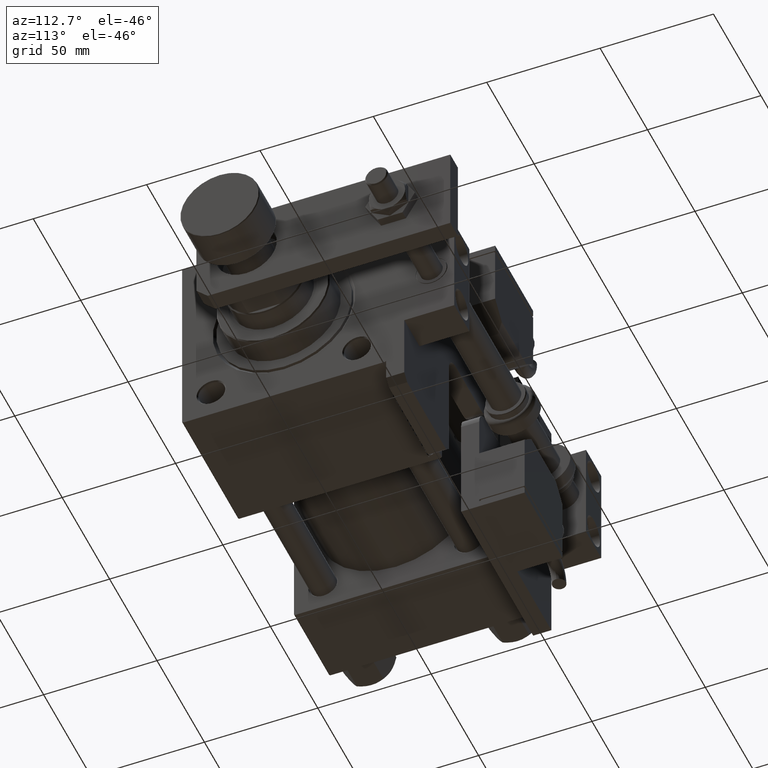
[diagram: clean part render]
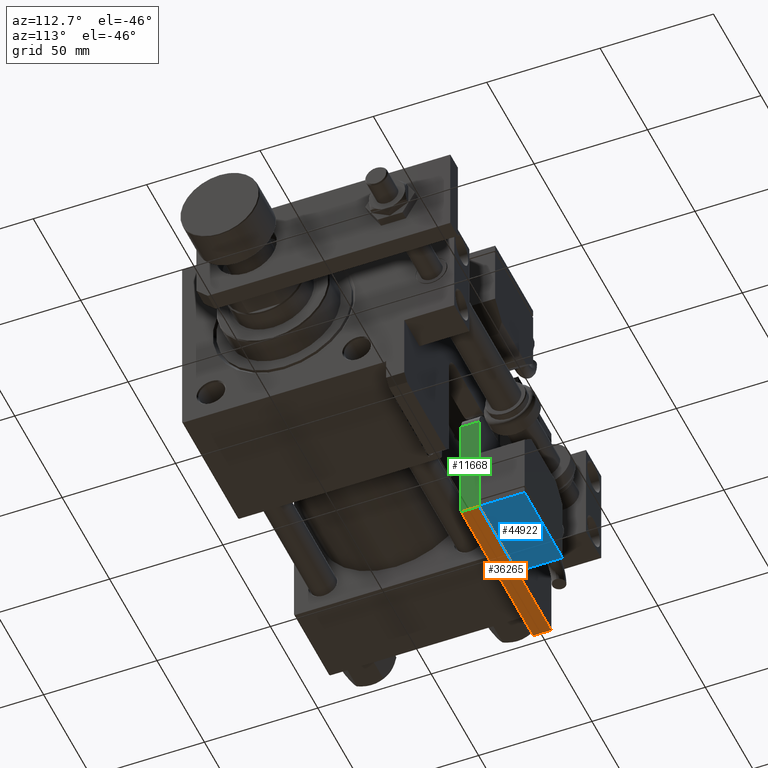
[diagram: same view with three faces highlighted in distinct colors, each labeled with its STEP entity id]
A machine part, auxiliary view with three faces highlighted in distinct colors.
Their STEP definitions:

[orange] entity #36265 — the highlighted planar face has unit normal (0, 0, 1).
#1633 = AXIS2_PLACEMENT_3D ( 'NONE', #50061, #14460, #31851 ) ;
#3937 = CARTESIAN_POINT ( 'NONE',  ( -76.00000000000004263, 0.000000000000000000, 8.000000000000000000 ) ) ;
#3966 = CARTESIAN_POINT ( 'NONE',  ( 0.000000000000000000, 0.000000000000000000, 8.000000000000000000 ) ) ;
#9808 = ORIENTED_EDGE ( 'NONE', *, *, #52588, .F. ) ;
#10129 = EDGE_CURVE ( 'NONE', #42151, #14256, #40466, .T. ) ;
#14256 = VERTEX_POINT ( 'NONE', #26624 ) ;
#14460 = DIRECTION ( 'NONE',  ( 0.000000000000000000, 1.000000000000000000, 0.000000000000000000 ) ) ;
#14898 = CARTESIAN_POINT ( 'NONE',  ( -76.00000000000004263, 0.000000000000000000, 8.000000000000000000 ) ) ;
#22367 = LINE ( 'NONE', #53435, #51693 ) ;
#23570 = PLANE ( 'NONE',  #1633 ) ;
#23707 = VERTEX_POINT ( 'NONE', #46045 ) ;
#26624 = CARTESIAN_POINT ( 'NONE',  ( 0.000000000000000000, 0.000000000000000000, 0.000000000000000000 ) ) ;
#27750 = VECTOR ( 'NONE', #49293, 1000.000000000000000 ) ;
#28398 = LINE ( 'NONE', #33252, #51126 ) ;
#28844 = DIRECTION ( 'NONE',  ( 1.000000000000000000, 0.000000000000000000, 0.000000000000000000 ) ) ;
#29512 = ORIENTED_EDGE ( 'NONE', *, *, #42547, .T. ) ;
#31851 = DIRECTION ( 'NONE',  ( 0.000000000000000000, -0.000000000000000000, 1.000000000000000000 ) ) ;
#32488 = CARTESIAN_POINT ( 'NONE',  ( 0.000000000000000000, 0.000000000000000000, 8.000000000000000000 ) ) ;
#33252 = CARTESIAN_POINT ( 'NONE',  ( -76.00000000000004263, 0.000000000000000000, 8.000000000000000000 ) ) ;
#35469 = EDGE_CURVE ( 'NONE', #23707, #14256, #22367, .T. ) ;
#36265 = ADVANCED_FACE ( 'NONE', ( #49495 ), #23570, .F. ) ;
#37125 = LINE ( 'NONE', #14898, #51536 ) ;
#40466 = LINE ( 'NONE', #32488, #27750 ) ;
#42151 = VERTEX_POINT ( 'NONE', #3966 ) ;
#42547 = EDGE_CURVE ( 'NONE', #50609, #23707, #28398, .T. ) ;
#44579 = DIRECTION ( 'NONE',  ( 1.000000000000000000, 0.000000000000000000, 0.000000000000000000 ) ) ;
#45258 = ORIENTED_EDGE ( 'NONE', *, *, #10129, .F. ) ;
#46045 = CARTESIAN_POINT ( 'NONE',  ( -76.00000000000004263, 0.000000000000000000, 0.000000000000000000 ) ) ;
#46047 = ORIENTED_EDGE ( 'NONE', *, *, #35469, .T. ) ;
#49293 = DIRECTION ( 'NONE',  ( -0.000000000000000000, -0.000000000000000000, -1.000000000000000000 ) ) ;
#49495 = FACE_OUTER_BOUND ( 'NONE', #51436, .T. ) ;
#50061 = CARTESIAN_POINT ( 'NONE',  ( -76.00000000000004263, 0.000000000000000000, 8.000000000000000000 ) ) ;
#50609 = VERTEX_POINT ( 'NONE', #3937 ) ;
#51126 = VECTOR ( 'NONE', #54631, 1000.000000000000000 ) ;
#51436 = EDGE_LOOP ( 'NONE', ( #46047, #45258, #9808, #29512 ) ) ;
#51536 = VECTOR ( 'NONE', #28844, 1000.000000000000000 ) ;
#51693 = VECTOR ( 'NONE', #44579, 1000.000000000000000 ) ;
#52588 = EDGE_CURVE ( 'NONE', #50609, #42151, #37125, .T. ) ;
#53435 = CARTESIAN_POINT ( 'NONE',  ( -76.00000000000004263, 0.000000000000000000, 0.000000000000000000 ) ) ;
#54631 = DIRECTION ( 'NONE',  ( -0.000000000000000000, -0.000000000000000000, -1.000000000000000000 ) ) ;

[blue] entity #44922 — the highlighted planar face has unit normal (0, 0, 1).
#1787 = DIRECTION ( 'NONE',  ( 1.000000000000000000, 0.000000000000000000, 0.000000000000000000 ) ) ;
#5460 = VECTOR ( 'NONE', #37022, 1000.000000000000000 ) ;
#5779 = VECTOR ( 'NONE', #1787, 1000.000000000000000 ) ;
#9334 = VERTEX_POINT ( 'NONE', #51454 ) ;
#9752 = ORIENTED_EDGE ( 'NONE', *, *, #41463, .T. ) ;
#10358 = LINE ( 'NONE', #36590, #31015 ) ;
#12067 = AXIS2_PLACEMENT_3D ( 'NONE', #22034, #22876, #26593 ) ;
#13080 = VERTEX_POINT ( 'NONE', #33905 ) ;
#17471 = FACE_OUTER_BOUND ( 'NONE', #51832, .T. ) ;
#19633 = CARTESIAN_POINT ( 'NONE',  ( 20.00000000000005329, -17.49999999999996092, -9.999999999999998224 ) ) ;
#22034 = CARTESIAN_POINT ( 'NONE',  ( 0.000000000000000000, -17.49999999999996092, 0.000000000000000000 ) ) ;
#22059 = LINE ( 'NONE', #39446, #5779 ) ;
#22876 = DIRECTION ( 'NONE',  ( 0.000000000000000000, 1.000000000000000000, 0.000000000000000000 ) ) ;
#26593 = DIRECTION ( 'NONE',  ( 0.000000000000000000, -0.000000000000000000, 1.000000000000000000 ) ) ;
#26970 = EDGE_CURVE ( 'NONE', #13080, #9334, #22059, .T. ) ;
#31015 = VECTOR ( 'NONE', #49424, 1000.000000000000000 ) ;
#33654 = EDGE_CURVE ( 'NONE', #37380, #13080, #35734, .T. ) ;
#33905 = CARTESIAN_POINT ( 'NONE',  ( -19.99999999999994316, -17.49999999999996092, -9.999999999999998224 ) ) ;
#34420 = ORIENTED_EDGE ( 'NONE', *, *, #26970, .T. ) ;
#34845 = PLANE ( 'NONE',  #12067 ) ;
#34918 = CARTESIAN_POINT ( 'NONE',  ( -19.99999999999994316, -17.49999999999996092, 10.00000000000000000 ) ) ;
#35734 = LINE ( 'NONE', #48283, #37991 ) ;
#36429 = ORIENTED_EDGE ( 'NONE', *, *, #33654, .T. ) ;
#36590 = CARTESIAN_POINT ( 'NONE',  ( -19.99999999999994316, -17.49999999999996092, 10.00000000000000000 ) ) ;
#37022 = DIRECTION ( 'NONE',  ( 0.000000000000000000, 0.000000000000000000, 1.000000000000000000 ) ) ;
#37380 = VERTEX_POINT ( 'NONE', #34918 ) ;
#37991 = VECTOR ( 'NONE', #53135, 1000.000000000000000 ) ;
#38221 = VERTEX_POINT ( 'NONE', #43211 ) ;
#39446 = CARTESIAN_POINT ( 'NONE',  ( -19.99999999999994316, -17.49999999999996092, -9.999999999999998224 ) ) ;
#41290 = LINE ( 'NONE', #19633, #5460 ) ;
#41463 = EDGE_CURVE ( 'NONE', #9334, #38221, #41290, .T. ) ;
#41533 = EDGE_CURVE ( 'NONE', #38221, #37380, #10358, .T. ) ;
#43211 = CARTESIAN_POINT ( 'NONE',  ( 20.00000000000005329, -17.49999999999996092, 10.00000000000000000 ) ) ;
#44922 = ADVANCED_FACE ( 'NONE', ( #17471 ), #34845, .F. ) ;
#48283 = CARTESIAN_POINT ( 'NONE',  ( -19.99999999999994316, -17.49999999999996092, -9.999999999999998224 ) ) ;
#49424 = DIRECTION ( 'NONE',  ( -1.000000000000000000, -0.000000000000000000, -0.000000000000000000 ) ) ;
#50142 = ORIENTED_EDGE ( 'NONE', *, *, #41533, .T. ) ;
#51454 = CARTESIAN_POINT ( 'NONE',  ( 20.00000000000005329, -17.49999999999996092, -9.999999999999998224 ) ) ;
#51832 = EDGE_LOOP ( 'NONE', ( #9752, #50142, #36429, #34420 ) ) ;
#53135 = DIRECTION ( 'NONE',  ( -0.000000000000000000, -0.000000000000000000, -1.000000000000000000 ) ) ;

[green] entity #11668 — the highlighted planar face has unit normal (-1, 0, 0).
#478 = CARTESIAN_POINT ( 'NONE',  ( -76.00000000000005684, 49.50000000000008527, 8.000000000000000000 ) ) ;
#1334 = CARTESIAN_POINT ( 'NONE',  ( -76.00000000000005684, 57.00000000000008527, 8.000000000000000000 ) ) ;
#1622 = PLANE ( 'NONE',  #4163 ) ;
#2516 = VERTEX_POINT ( 'NONE', #478 ) ;
#3937 = CARTESIAN_POINT ( 'NONE',  ( -76.00000000000004263, 0.000000000000000000, 8.000000000000000000 ) ) ;
#4163 = AXIS2_PLACEMENT_3D ( 'NONE', #1334, #35847, #36135 ) ;
#6399 = LINE ( 'NONE', #14163, #52632 ) ;
#9691 = ORIENTED_EDGE ( 'NONE', *, *, #40082, .F. ) ;
#11668 = ADVANCED_FACE ( 'NONE', ( #18466 ), #1622, .F. ) ;
#11963 = CARTESIAN_POINT ( 'NONE',  ( -76.00000000000005684, 49.50000000000008527, 0.000000000000000000 ) ) ;
#13043 = VERTEX_POINT ( 'NONE', #11963 ) ;
#14163 = CARTESIAN_POINT ( 'NONE',  ( -76.00000000000005684, 57.00000000000008527, 8.000000000000000000 ) ) ;
#18466 = FACE_OUTER_BOUND ( 'NONE', #25341, .T. ) ;
#20105 = ORIENTED_EDGE ( 'NONE', *, *, #26479, .T. ) ;
#20950 = LINE ( 'NONE', #51149, #54182 ) ;
#22200 = VECTOR ( 'NONE', #42933, 1000.000000000000000 ) ;
#23707 = VERTEX_POINT ( 'NONE', #46045 ) ;
#25341 = EDGE_LOOP ( 'NONE', ( #9691, #30186, #20105, #39445 ) ) ;
#26479 = EDGE_CURVE ( 'NONE', #13043, #23707, #52343, .T. ) ;
#28398 = LINE ( 'NONE', #33252, #51126 ) ;
#30063 = EDGE_CURVE ( 'NONE', #2516, #13043, #20950, .T. ) ;
#30186 = ORIENTED_EDGE ( 'NONE', *, *, #30063, .T. ) ;
#31550 = DIRECTION ( 'NONE',  ( 2.434699615406041273E-16, -1.000000000000000000, 0.000000000000000000 ) ) ;
#33252 = CARTESIAN_POINT ( 'NONE',  ( -76.00000000000004263, 0.000000000000000000, 8.000000000000000000 ) ) ;
#35847 = DIRECTION ( 'NONE',  ( 1.000000000000000000, 2.434699615406041767E-16, -0.000000000000000000 ) ) ;
#36135 = DIRECTION ( 'NONE',  ( -2.434699615406041767E-16, 1.000000000000000000, 0.000000000000000000 ) ) ;
#38328 = DIRECTION ( 'NONE',  ( 0.000000000000000000, 0.000000000000000000, -1.000000000000000000 ) ) ;
#39445 = ORIENTED_EDGE ( 'NONE', *, *, #42547, .F. ) ;
#40082 = EDGE_CURVE ( 'NONE', #2516, #50609, #6399, .T. ) ;
#42547 = EDGE_CURVE ( 'NONE', #50609, #23707, #28398, .T. ) ;
#42933 = DIRECTION ( 'NONE',  ( 2.434699615406041273E-16, -1.000000000000000000, 0.000000000000000000 ) ) ;
#46045 = CARTESIAN_POINT ( 'NONE',  ( -76.00000000000004263, 0.000000000000000000, 0.000000000000000000 ) ) ;
#50609 = VERTEX_POINT ( 'NONE', #3937 ) ;
#51126 = VECTOR ( 'NONE', #54631, 1000.000000000000000 ) ;
#51149 = CARTESIAN_POINT ( 'NONE',  ( -76.00000000000005684, 49.50000000000008527, 8.000000000000000000 ) ) ;
#52058 = CARTESIAN_POINT ( 'NONE',  ( -76.00000000000005684, 57.00000000000008527, 0.000000000000000000 ) ) ;
#52343 = LINE ( 'NONE', #52058, #22200 ) ;
#52632 = VECTOR ( 'NONE', #31550, 1000.000000000000000 ) ;
#54182 = VECTOR ( 'NONE', #38328, 1000.000000000000000 ) ;
#54631 = DIRECTION ( 'NONE',  ( -0.000000000000000000, -0.000000000000000000, -1.000000000000000000 ) ) ;